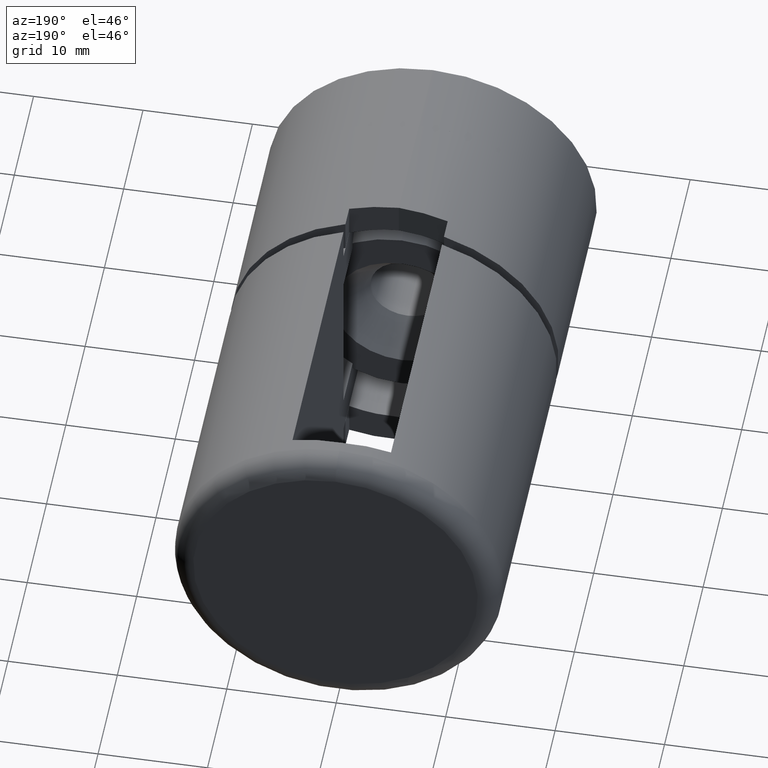
[diagram: clean part render]
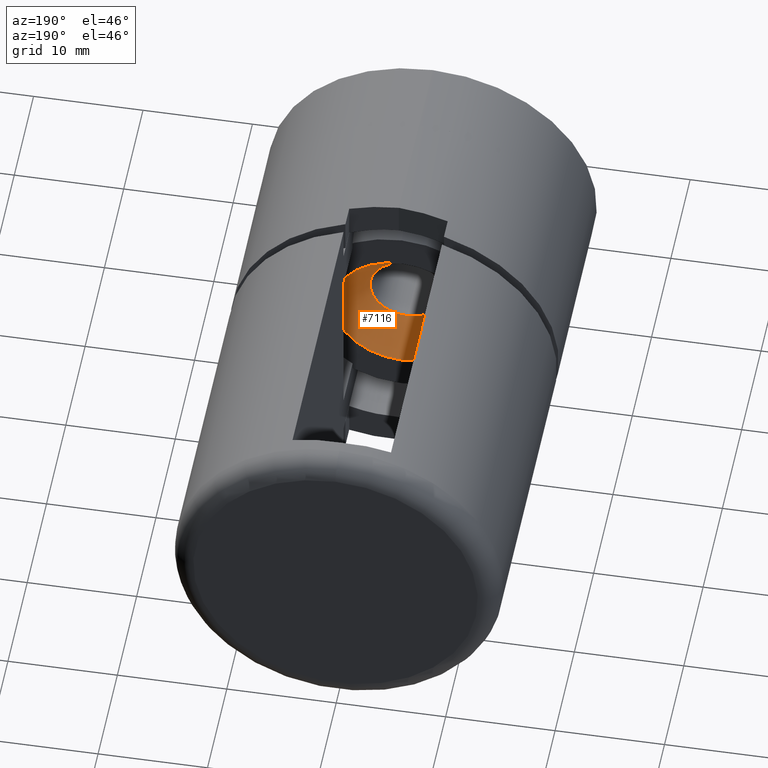
[diagram: same view with one face highlighted and labeled with its STEP entity id]
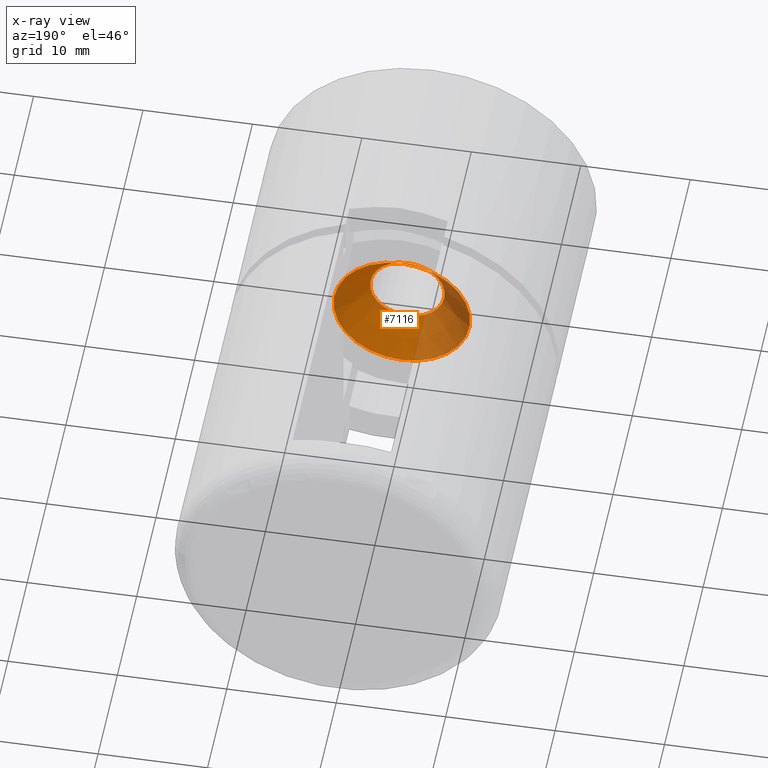
[diagram: x-ray of the same camera — body ghosted, the highlighted face saturated]
A machine part, auxiliary view. The second image highlights one B-rep face of the part: STEP entity #7116.
The next image is the same camera in x-ray: the body ghosted, the highlighted face saturated — about 40% of this face is hidden behind the body in this view.
In plain terms, the highlighted conical surface has half-angle 45 deg.
Its self-contained STEP definition (entity closure, byte-faithful):
#120 = DIRECTION ( 'NONE',  ( 0.0000000000000000000, -1.000000000000000000, 0.0000000000000000000 ) ) ;
#1392 = CARTESIAN_POINT ( 'NONE',  ( 0.0000000000000000000, 13.15000000000000000, 0.0000000000000000000 ) ) ;
#2358 = CIRCLE ( 'NONE', #12652, 6.250000000000000000 ) ;
#4485 = VERTEX_POINT ( 'NONE', #5675 ) ;
#4715 = VERTEX_POINT ( 'NONE', #7080 ) ;
#5160 = AXIS2_PLACEMENT_3D ( 'NONE', #10367, #7837, #11822 ) ;
#5354 = CARTESIAN_POINT ( 'NONE',  ( 0.0000000000000000000, 16.00000000000000000, 0.0000000000000000000 ) ) ;
#5363 = ORIENTED_EDGE ( 'NONE', *, *, #11153, .T. ) ;
#5675 = CARTESIAN_POINT ( 'NONE',  ( 0.0000000000000000000, 16.00000000000000000, 6.250000000000000000 ) ) ;
#6233 = FACE_BOUND ( 'NONE', #16664, .T. ) ;
#6623 = CONICAL_SURFACE ( 'NONE', #5160, 6.250000000000000000, 0.7853981633974487200 ) ;
#7080 = CARTESIAN_POINT ( 'NONE',  ( 0.0000000000000000000, 13.15000000000000000, 3.399999999999997700 ) ) ;
#7116 = ADVANCED_FACE ( 'NONE', ( #6233, #8731 ), #6623, .F. ) ;
#7837 = DIRECTION ( 'NONE',  ( -0.0000000000000000000, 1.000000000000000000, -0.0000000000000000000 ) ) ;
#8250 = CIRCLE ( 'NONE', #14925, 3.399999999999997700 ) ;
#8731 = FACE_OUTER_BOUND ( 'NONE', #16283, .T. ) ;
#10367 = CARTESIAN_POINT ( 'NONE',  ( 0.0000000000000000000, 16.00000000000000000, 0.0000000000000000000 ) ) ;
#10522 = DIRECTION ( 'NONE',  ( 0.0000000000000000000, 0.0000000000000000000, 1.000000000000000000 ) ) ;
#11153 = EDGE_CURVE ( 'NONE', #4485, #4485, #2358, .T. ) ;
#11282 = EDGE_CURVE ( 'NONE', #4715, #4715, #8250, .T. ) ;
#11822 = DIRECTION ( 'NONE',  ( 0.0000000000000000000, 0.0000000000000000000, 1.000000000000000000 ) ) ;
#12652 = AXIS2_PLACEMENT_3D ( 'NONE', #5354, #17216, #10522 ) ;
#14855 = DIRECTION ( 'NONE',  ( 0.0000000000000000000, 0.0000000000000000000, 1.000000000000000000 ) ) ;
#14925 = AXIS2_PLACEMENT_3D ( 'NONE', #1392, #120, #14855 ) ;
#16047 = ORIENTED_EDGE ( 'NONE', *, *, #11282, .T. ) ;
#16283 = EDGE_LOOP ( 'NONE', ( #5363 ) ) ;
#16664 = EDGE_LOOP ( 'NONE', ( #16047 ) ) ;
#17216 = DIRECTION ( 'NONE',  ( -0.0000000000000000000, 1.000000000000000000, -0.0000000000000000000 ) ) ;